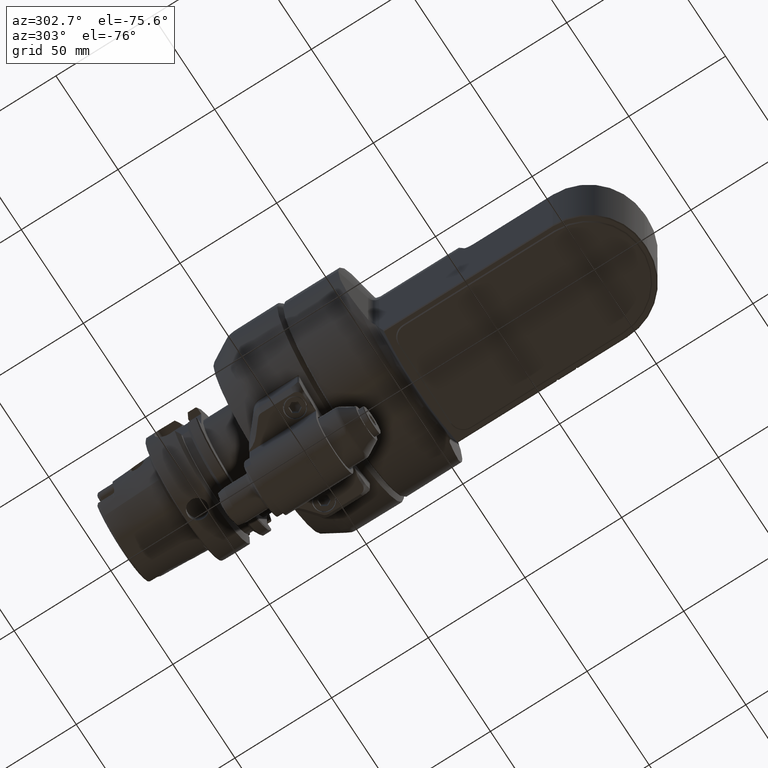
[diagram: clean part render]
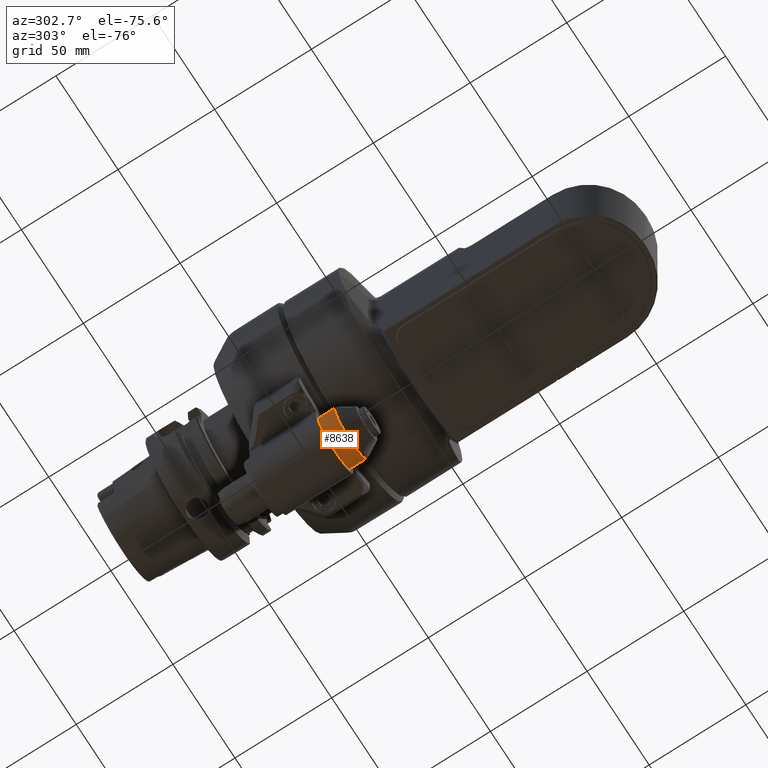
[diagram: same view with one face highlighted and labeled with its STEP entity id]
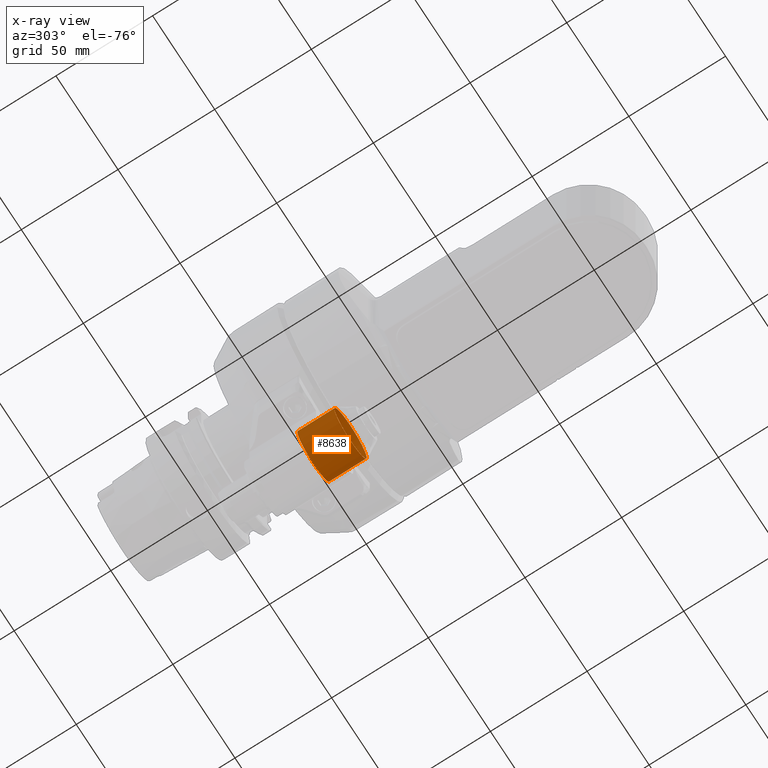
[diagram: x-ray of the same camera — body ghosted, the highlighted face saturated]
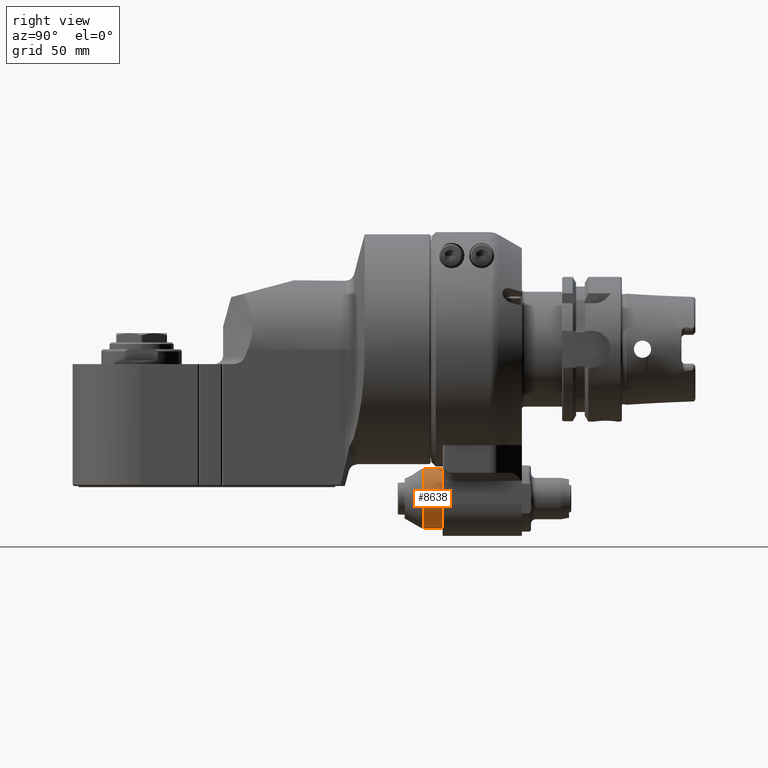
[diagram: same view with one face highlighted and labeled with its STEP entity id]
A machine part, auxiliary view. The second image highlights one B-rep face of the part: STEP entity #8638.
The next image is the same camera in x-ray: the body ghosted, the highlighted face saturated — about 0% of this face is hidden behind the body in this view.
A second angle (right view) of the same face is appended — the face is thin or edge-on in the first view.
In plain terms, the highlighted cylindrical surface (bore or boss wall) has radius 13 mm, axis along (0, -1, 0).
Its self-contained STEP definition (entity closure, byte-faithful):
#1153=FACE_OUTER_BOUND('',#1693,.T.);
#1693=EDGE_LOOP('',(#7803,#7804,#7805,#7806,#7807,#7808));
#2283=LINE('',#15992,#2850);
#2850=VECTOR('',#11896,13.);
#3302=CIRCLE('',#9588,13.);
#3303=CIRCLE('',#9589,13.);
#3304=CIRCLE('',#9591,13.);
#3305=CIRCLE('',#9592,13.);
#4126=VERTEX_POINT('',#15983);
#4127=VERTEX_POINT('',#15984);
#4128=VERTEX_POINT('',#15988);
#4129=VERTEX_POINT('',#15989);
#5366=EDGE_CURVE('',#4126,#4127,#3302,.T.);
#5367=EDGE_CURVE('',#4127,#4126,#3303,.T.);
#5368=EDGE_CURVE('',#4128,#4129,#3304,.T.);
#5369=EDGE_CURVE('',#4129,#4128,#3305,.T.);
#5370=EDGE_CURVE('',#4129,#4127,#2283,.T.);
#7803=ORIENTED_EDGE('',*,*,#5368,.F.);
#7804=ORIENTED_EDGE('',*,*,#5369,.F.);
#7805=ORIENTED_EDGE('',*,*,#5370,.T.);
#7806=ORIENTED_EDGE('',*,*,#5366,.F.);
#7807=ORIENTED_EDGE('',*,*,#5367,.F.);
#7808=ORIENTED_EDGE('',*,*,#5370,.F.);
#8200=CYLINDRICAL_SURFACE('',#9590,13.);
#8638=ADVANCED_FACE('',(#1153),#8200,.T.);
#9588=AXIS2_PLACEMENT_3D('',#15985,#11886,#11887);
#9589=AXIS2_PLACEMENT_3D('',#15986,#11888,#11889);
#9590=AXIS2_PLACEMENT_3D('',#15987,#11890,#11891);
#9591=AXIS2_PLACEMENT_3D('',#15990,#11892,#11893);
#9592=AXIS2_PLACEMENT_3D('',#15991,#11894,#11895);
#11886=DIRECTION('center_axis',(0.,1.,0.));
#11887=DIRECTION('ref_axis',(0.,0.,-1.));
#11888=DIRECTION('center_axis',(0.,1.,0.));
#11889=DIRECTION('ref_axis',(0.,0.,-1.));
#11890=DIRECTION('center_axis',(0.,-1.,0.));
#11891=DIRECTION('ref_axis',(0.,0.,-1.));
#11892=DIRECTION('center_axis',(0.,-1.,0.));
#11893=DIRECTION('ref_axis',(0.,0.,1.));
#11894=DIRECTION('center_axis',(0.,-1.,0.));
#11895=DIRECTION('ref_axis',(0.,0.,1.));
#11896=DIRECTION('',(0.,1.,0.));
#15983=CARTESIAN_POINT('',(0.,16.,-78.));
#15984=CARTESIAN_POINT('',(-1.59204083889156E-15,16.,-52.));
#15985=CARTESIAN_POINT('Origin',(0.,16.,-65.));
#15986=CARTESIAN_POINT('Origin',(0.,16.,-65.));
#15987=CARTESIAN_POINT('Origin',(0.,5.,-65.));
#15988=CARTESIAN_POINT('',(0.,-3.196152422707,-78.));
#15989=CARTESIAN_POINT('',(-1.59204083889156E-15,-3.196152422707,-52.));
#15990=CARTESIAN_POINT('Origin',(0.,-3.196152422707,-65.));
#15991=CARTESIAN_POINT('Origin',(0.,-3.196152422707,-65.));
#15992=CARTESIAN_POINT('',(-1.59204083889156E-15,5.,-52.));